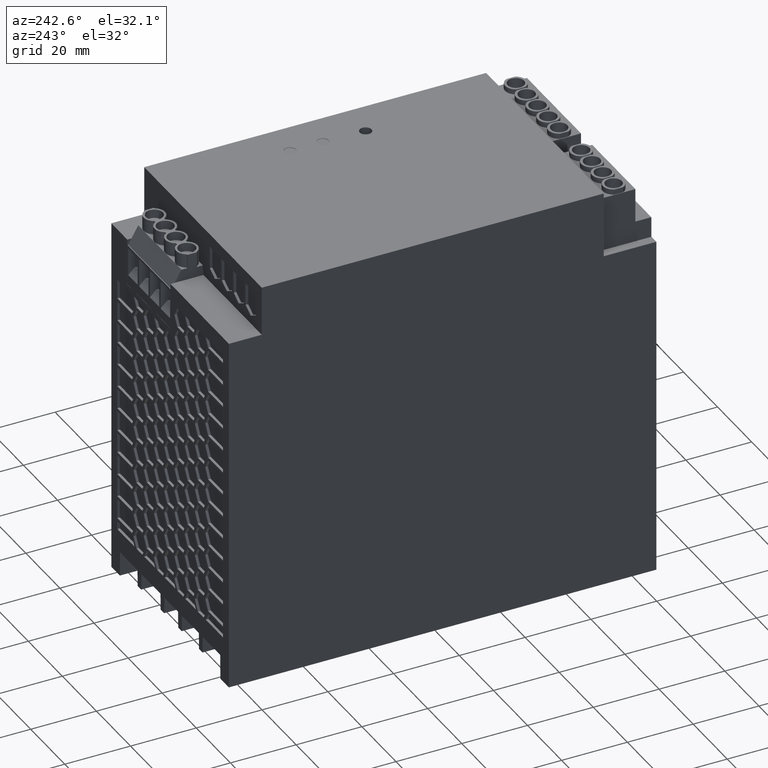
[diagram: clean part render]
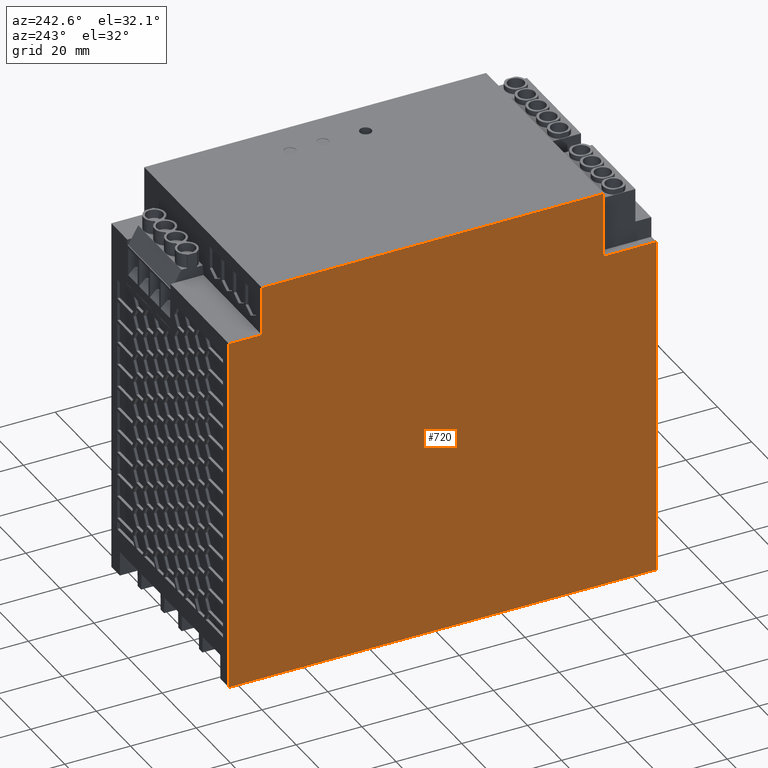
[diagram: same view with one face highlighted and labeled with its STEP entity id]
A machine part, auxiliary view. The second image highlights one B-rep face of the part: STEP entity #720.
In plain terms, the highlighted planar face has unit normal (-1, 0, 0).
Its self-contained STEP definition (entity closure, byte-faithful):
#10=CARTESIAN_POINT('',(56.804929713,-0.012345373285811,194.240843060292
));
#20=DIRECTION('',(0.,0.,1.));
#30=DIRECTION('',(-2.77555756156289E-17,1.,0.));
#40=AXIS2_PLACEMENT_3D('',#10,#20,#30);
#50=PLANE('',#40);
#60=CARTESIAN_POINT('',(-16.6,-56.0123453732858,194.240843060292));
#70=DIRECTION('',(-1.,0.,0.));
#80=VECTOR('',#70,1.);
#90=LINE('',#60,#80);
#100=CARTESIAN_POINT('',(57.30492970952,-56.0123453732858,
194.240843060292));
#110=VERTEX_POINT('',#100);
#120=CARTESIAN_POINT('',(-72.6950702848799,-56.0123453732858,
194.240843060292));
#130=VERTEX_POINT('',#120);
#140=EDGE_CURVE('',#110,#130,#90,.T.);
#150=ORIENTED_EDGE('',*,*,#140,.F.);
#160=CARTESIAN_POINT('',(-72.6950702848799,110.141068479707,
194.240843060292));
#170=DIRECTION('',(0.,1.,0.));
#180=VECTOR('',#170,1.);
#190=LINE('',#160,#180);
#200=CARTESIAN_POINT('',(-72.6950702848799,53.4876546293141,
194.240843060292));
#210=VERTEX_POINT('',#200);
#220=EDGE_CURVE('',#130,#210,#190,.T.);
#230=ORIENTED_EDGE('',*,*,#220,.F.);
#240=CARTESIAN_POINT('',(-16.6,53.4876546293141,194.240843060292));
#250=DIRECTION('',(1.,0.,0.));
#260=VECTOR('',#250,1.);
#270=LINE('',#240,#260);
#280=CARTESIAN_POINT('',(-62.6950702965998,53.4876546293141,
194.240843060292));
#290=VERTEX_POINT('',#280);
#300=EDGE_CURVE('',#210,#290,#270,.T.);
#310=ORIENTED_EDGE('',*,*,#300,.F.);
#320=CARTESIAN_POINT('',(-62.6950702965998,110.141068479707,
194.240843060292));
#330=DIRECTION('',(0.,1.,0.));
#340=VECTOR('',#330,1.);
#350=LINE('',#320,#340);
#360=CARTESIAN_POINT('',(-62.6950702965998,68.4876546267142,
194.240843060292));
#370=VERTEX_POINT('',#360);
#380=EDGE_CURVE('',#290,#370,#350,.T.);
#390=ORIENTED_EDGE('',*,*,#380,.F.);
#400=CARTESIAN_POINT('',(-16.6,68.4876546267142,194.240843060292));
#410=DIRECTION('',(1.,0.,0.));
#420=VECTOR('',#410,1.);
#430=LINE('',#400,#420);
#440=CARTESIAN_POINT('',(41.3049297130003,68.4876546267142,
194.240843060292));
#450=VERTEX_POINT('',#440);
#460=EDGE_CURVE('',#370,#450,#430,.T.);
#470=ORIENTED_EDGE('',*,*,#460,.F.);
#480=CARTESIAN_POINT('',(41.3049297130003,110.141068479707,
194.240843060292));
#490=DIRECTION('',(0.,-1.,0.));
#500=VECTOR('',#490,1.);
#510=LINE('',#480,#500);
#520=CARTESIAN_POINT('',(41.3049297130003,48.4876546267142,
194.240843060292));
#530=VERTEX_POINT('',#520);
#540=EDGE_CURVE('',#450,#530,#510,.T.);
#550=ORIENTED_EDGE('',*,*,#540,.F.);
#560=CARTESIAN_POINT('',(-16.6,48.4876546267142,194.240843060292));
#570=DIRECTION('',(1.,2.77555756156289E-17,0.));
#580=VECTOR('',#570,1.);
#590=LINE('',#560,#580);
#600=CARTESIAN_POINT('',(57.30492970952,48.4876546267142,
194.240843060292));
#610=VERTEX_POINT('',#600);
#620=EDGE_CURVE('',#530,#610,#590,.T.);
#630=ORIENTED_EDGE('',*,*,#620,.F.);
#640=CARTESIAN_POINT('',(57.30492970952,110.141068479707,
194.240843060292));
#650=DIRECTION('',(0.,-1.,0.));
#660=VECTOR('',#650,1.);
#670=LINE('',#640,#660);
#680=EDGE_CURVE('',#610,#110,#670,.T.);
#690=ORIENTED_EDGE('',*,*,#680,.F.);
#700=EDGE_LOOP('',(#690,#630,#550,#470,#390,#310,#230,#150));
#710=FACE_OUTER_BOUND('',#700,.T.);
#720=ADVANCED_FACE('',(#710),#50,.T.);